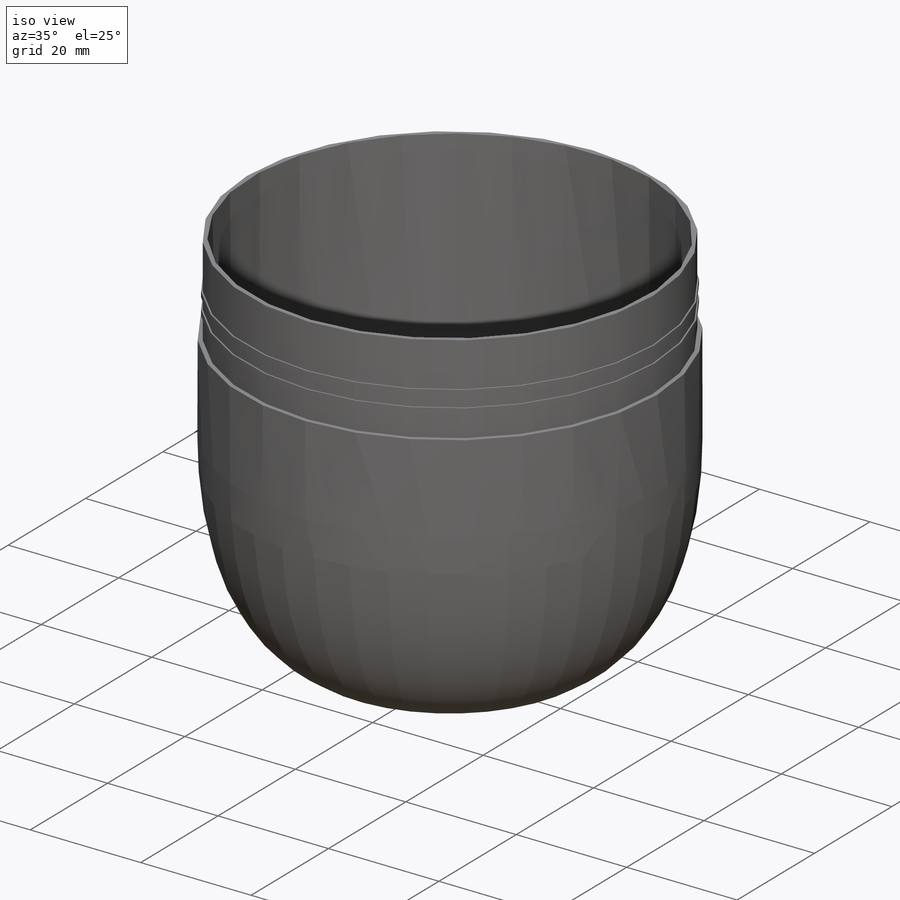
[diagram: iso view]
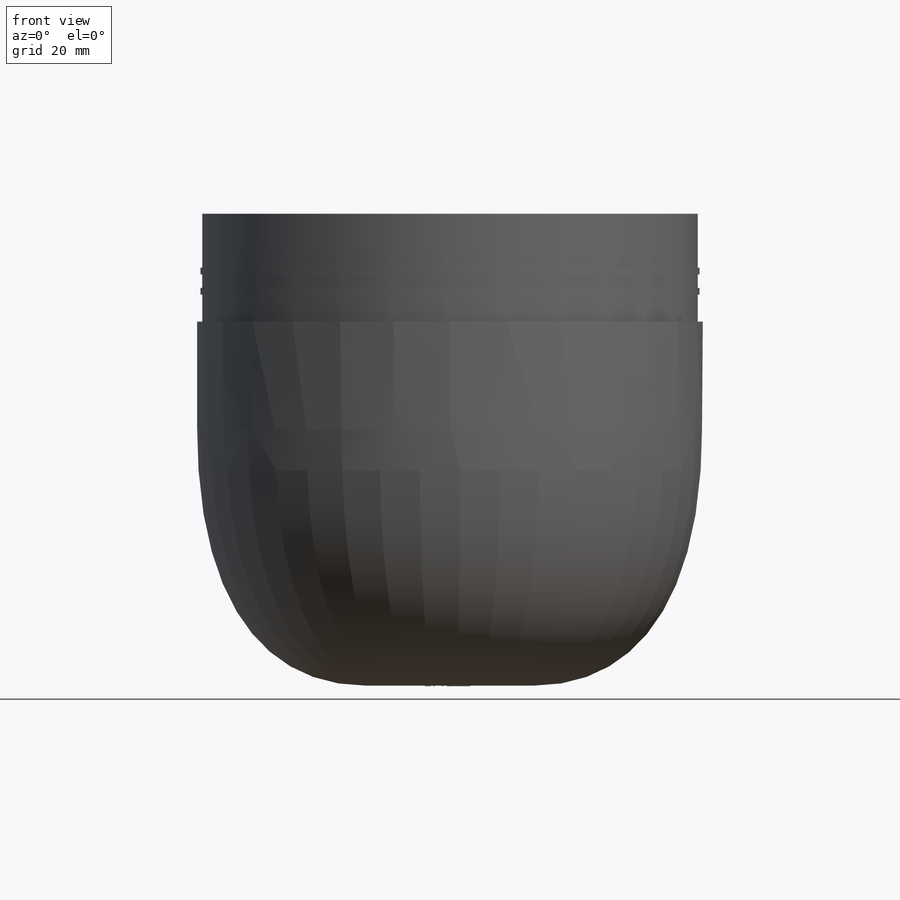
[diagram: front view]
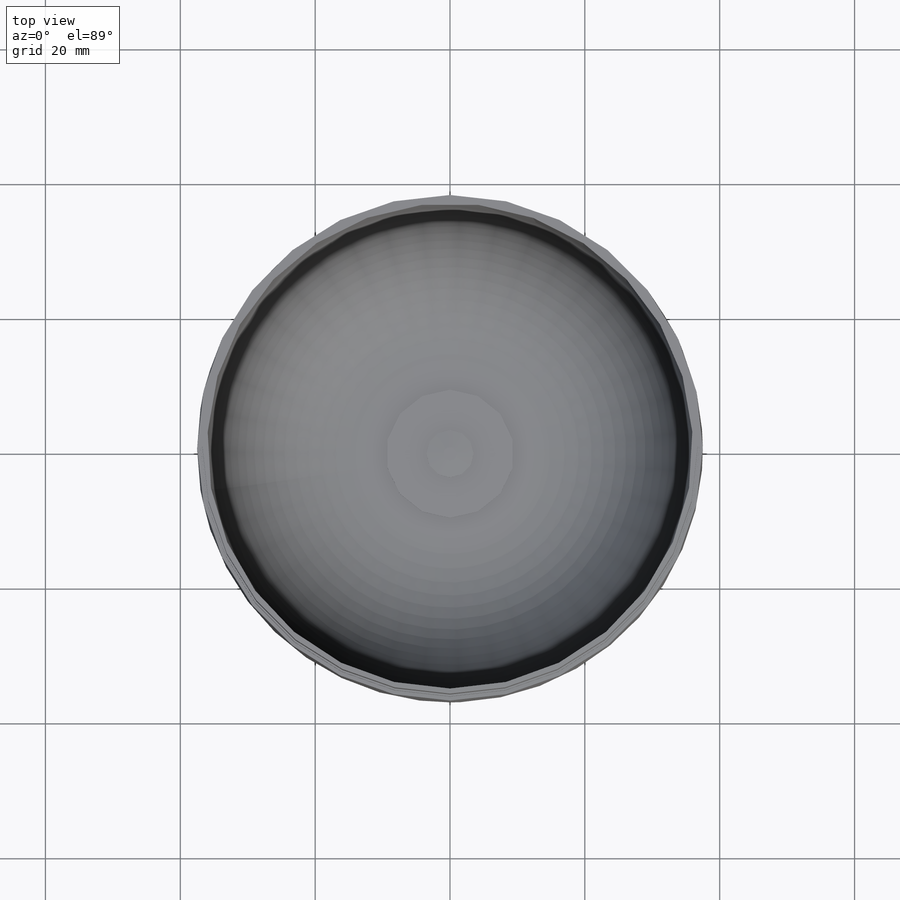
[diagram: top view]
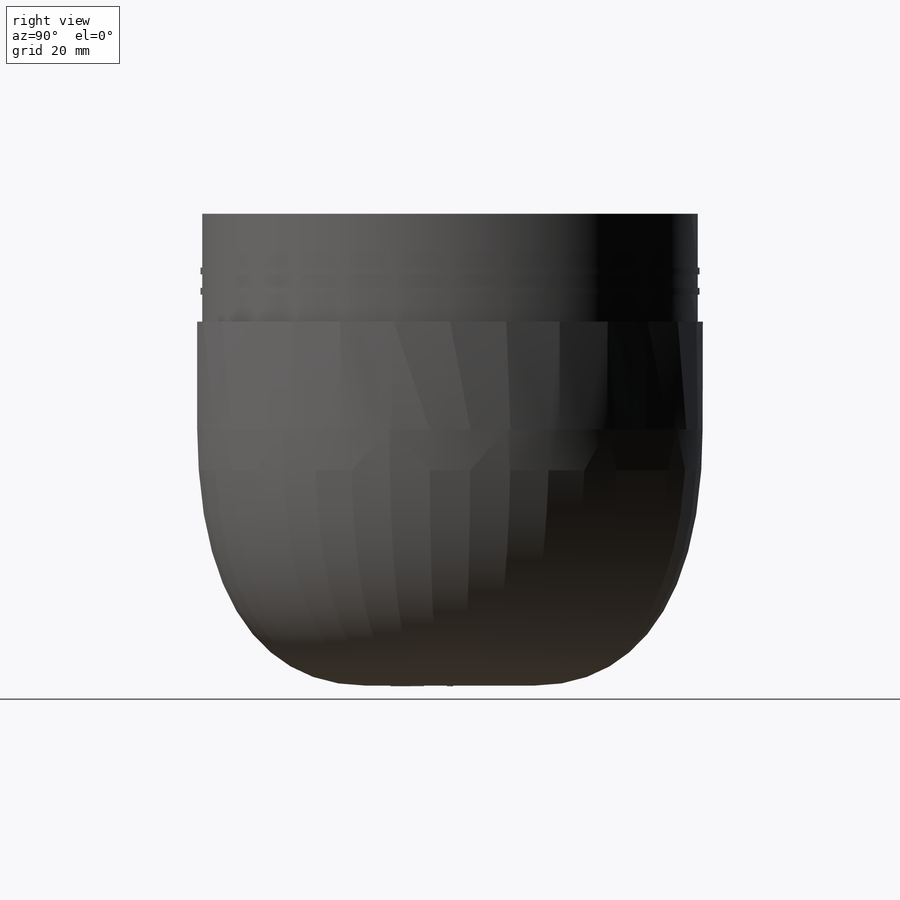
[diagram: right view]
SOLIDWORKS PART (.sldprt)
format: sldprt  version: not decoded by parser v0  size: 337,920 bytes
history: native  units: mm
features: sketch x9, extrude x6, chamfer x3, cut_extrude x2, material x1 (+11 scaffold rows collapsed)
feature tree (32):
  scaffold x11  (default folders/planes/origin — collapsed)
  material  "PP Copolymer"
  sketch  "Sketch1"  dims[c1.D1=16.0mm c1.D2=37.5mm c1.D3=12.5mm c1.D4=38.0mm c2.D1=360.0deg c3.D1=1.5mm]
  sketch  "Sketch2"  dims[D1=73.5mm]
  extrude  "Boss-Extrude2"  Depth=16mm
  sketch  "Sketch3"  dims[D1=1.0mm D2=4.0mm D3=74.5mm D4=74.5mm D5=1.0mm D6=2.0mm]
  extrude  "Boss-Extrude3"  Depth=0.25mm
  sketch  "Sketch4"
  cut_extrude  "Cut-Extrude1"  Depth=5mm
  sketch  "Sketch5"  dims[D1=5.0mm]
  cut_extrude  "Cut-Extrude2"  Depth=0.5mm
  chamfer  "Chamfer1"  Distance=0.5mm Angle=45deg
  sketch  "Sketch7"  dims[D1=3.0mm D2=0.25mm D3=2.0mm D4=0.0mm D5=0.25mm D6=0.25mm D7=0.25mm D8=0.25mm D9=2.0mm D10=0.25mm]
  extrude  "Boss-Extrude4"  Depth=0.1mm
  sketch  "Sketch8"
  extrude  "Boss-Extrude5"  Depth=0.1mm
  chamfer  "Chamfer2"  Distance=0.05mm Angle=45deg
  sketch  "Sketch9"  dims[D1=19.0mm]
  extrude  "Boss-Extrude6"  Depth=0.5mm
  sketch  "Sketch10"  dims[D1=7.0mm]
  extrude  "Boss-Extrude7"  Depth=0.5mm
  chamfer  "Chamfer3"  Distance=0.22mm Angle=85deg
decode coverage: 18 of 20 modeling features carry decoded parameters
note: suppression state not decoded; provenance and decode notes live in map.json
